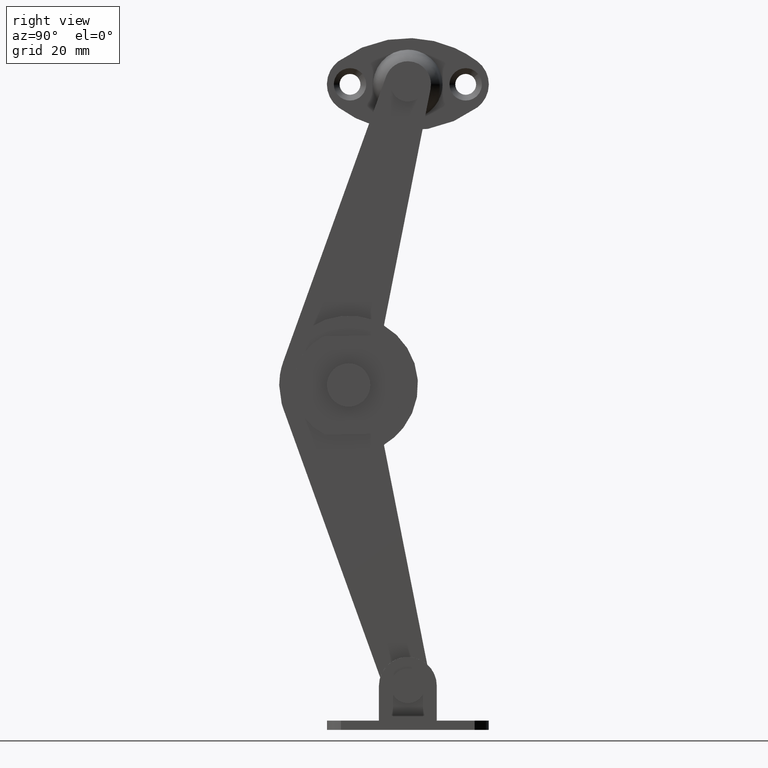
[diagram: clean part render]
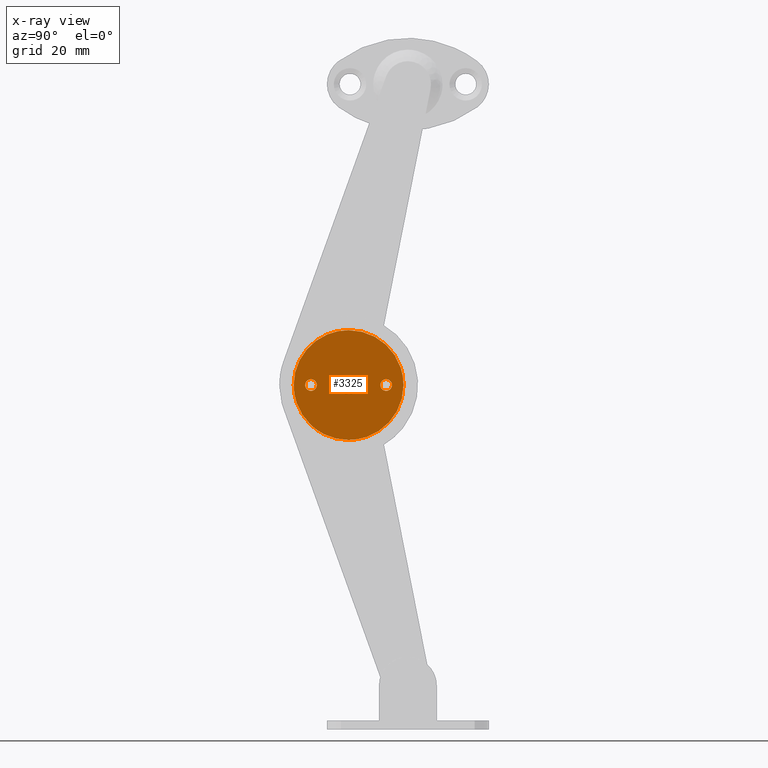
[diagram: x-ray — body ghosted, one internal face saturated and labeled with its STEP entity id]
A machine part, right view, then the same camera in x-ray: the body is ghosted and one INTERNAL B-rep face — a face not visible from any outside direction — is saturated and labeled: STEP entity #3325.
In plain terms, the highlighted face is a freeform B-spline surface patch.
Its self-contained STEP definition (entity closure, byte-faithful):
#2497=CARTESIAN_POINT('',(5.500000000000000,-3.030322445225655,0.697432151794215));
#2498=VERTEX_POINT('',#2497);
#2504=CARTESIAN_POINT('',(5.500000000000000,-3.746973262321150,1.0));
#2505=VERTEX_POINT('',#2504);
#2506=CARTESIAN_POINT('',(5.500000000000000,-3.746973262321150,1.0));
#2507=CARTESIAN_POINT('',(5.500000000000006,-3.622109199368205,1.000103857612727));
#2508=CARTESIAN_POINT('',(5.499999999999981,-3.355877692336740,0.949447917361314));
#2509=CARTESIAN_POINT('',(5.500000000000013,-3.128876140772158,0.798982933153418));
#2510=CARTESIAN_POINT('',(5.500000000000000,-3.030322445225655,0.697432151794215));
#2511=B_SPLINE_CURVE_WITH_KNOTS('',3,(#2506,#2507,#2508,#2509,#2510),.UNSPECIFIED.,.F.,.U.,(4,1,4),(0.000000076756740,0.374556772976184,0.799008979582995),.UNSPECIFIED.);
#2512=EDGE_CURVE('',#2505,#2498,#2511,.T.);
#2514=CARTESIAN_POINT('',(5.500000000000000,-4.746973262321151,2.220446E-016));
#2515=VERTEX_POINT('',#2514);
#2516=CARTESIAN_POINT('',(5.500000000000000,-4.746973262321151,2.220446E-016));
#2517=CARTESIAN_POINT('',(5.499999999999983,-4.747409396205232,0.171922380824970));
#2518=CARTESIAN_POINT('',(5.500000000000024,-4.682128031978997,0.416910630063557));
#2519=CARTESIAN_POINT('',(5.499999999999981,-4.484315041537432,0.690398314859870));
#2520=CARTESIAN_POINT('',(5.500000000000012,-4.313775716574186,0.833909462013589));
#2521=CARTESIAN_POINT('',(5.499999999999989,-4.065947102834080,0.962494687546540));
#2522=CARTESIAN_POINT('',(5.500000000000069,-3.877904973385439,1.000155442239726));
#2523=CARTESIAN_POINT('',(5.500000000000000,-3.746973262321150,1.0));
#2524=B_SPLINE_CURVE_WITH_KNOTS('',3,(#2516,#2517,#2518,#2519,#2520,#2521,#2522,#2523),.UNSPECIFIED.,.F.,.U.,(4,1,1,1,1,4),(0.000000280012394,0.515444720644122,0.736351344608568,1.006309350944693,1.178126924052064,1.570835744389344),.UNSPECIFIED.);
#2525=EDGE_CURVE('',#2515,#2505,#2524,.T.);
#2527=CARTESIAN_POINT('',(5.500000000000000,-3.746973262321150,-1.000000000000000));
#2528=VERTEX_POINT('',#2527);
#2529=CARTESIAN_POINT('',(5.500000000000000,-3.746973262321150,-1.000000000000000));
#2530=CARTESIAN_POINT('',(5.499999999999995,-3.910638233185186,-1.000326984301996));
#2531=CARTESIAN_POINT('',(5.500000000000016,-4.204899616133628,-0.926066770694072));
#2532=CARTESIAN_POINT('',(5.499999999999992,-4.494913788233987,-0.687947884031212));
#2533=CARTESIAN_POINT('',(5.500000000000007,-4.692434213185833,-0.384304910056198));
#2534=CARTESIAN_POINT('',(5.499999999999986,-4.747267979056386,-0.155511716261498));
#2535=CARTESIAN_POINT('',(5.500000000000000,-4.746973262321151,2.220446E-016));
#2536=B_SPLINE_CURVE_WITH_KNOTS('',3,(#2529,#2530,#2531,#2532,#2533,#2534,#2535),.UNSPECIFIED.,.F.,.U.,(4,1,1,1,4),(0.000000280011798,0.490890880689930,0.883567168156846,1.104486430735528,1.570835744389348),.UNSPECIFIED.);
#2537=EDGE_CURVE('',#2528,#2515,#2536,.T.);
#2539=CARTESIAN_POINT('',(5.500000000000000,-3.009696018246675,-0.675590308818834));
#2540=VERTEX_POINT('',#2539);
#2541=CARTESIAN_POINT('',(5.500000000000000,-3.009696018246675,-0.675590308818834));
#2542=CARTESIAN_POINT('',(5.500000000000002,-3.097132552567032,-0.771197565725295));
#2543=CARTESIAN_POINT('',(5.500000000000001,-3.324008704496241,-0.937986325488980));
#2544=CARTESIAN_POINT('',(5.499999999999996,-3.600141037038497,-1.000200448424555));
#2545=CARTESIAN_POINT('',(5.500000000000000,-3.746973262321150,-1.000000000000000));
#2546=B_SPLINE_CURVE_WITH_KNOTS('',3,(#2541,#2542,#2543,#2544,#2545),.UNSPECIFIED.,.F.,.U.,(4,1,4),(0.000000092268307,0.388643068120975,0.829054436019730),.UNSPECIFIED.);
#2547=EDGE_CURVE('',#2540,#2528,#2546,.T.);
#2625=CARTESIAN_POINT('',(5.500000000000000,-2.746973262321150,2.220446E-016));
#2626=VERTEX_POINT('',#2625);
#2627=CARTESIAN_POINT('',(5.500000000000000,-2.746973262321150,2.220446E-016));
#2628=CARTESIAN_POINT('',(5.500000000000004,-2.746819405955617,-0.131371617206485));
#2629=CARTESIAN_POINT('',(5.499999999999995,-2.796462141376235,-0.378490612743781));
#2630=CARTESIAN_POINT('',(5.500000000000004,-2.931319265302183,-0.590183102757916));
#2631=CARTESIAN_POINT('',(5.500000000000000,-3.009696018246675,-0.675590308818834));
#2632=B_SPLINE_CURVE_WITH_KNOTS('',3,(#2627,#2628,#2629,#2630,#2631),.UNSPECIFIED.,.F.,.U.,(4,1,4),(0.000000066372093,0.394049839715587,0.741781672745502),.UNSPECIFIED.);
#2633=EDGE_CURVE('',#2626,#2540,#2632,.T.);
#2635=CARTESIAN_POINT('',(5.500000000000000,-3.030322445225655,0.697432151794215));
#2636=CARTESIAN_POINT('',(5.500000000000006,-2.934872778740838,0.599585710616792));
#2637=CARTESIAN_POINT('',(5.499999999999992,-2.794092481038208,0.377805255910599));
#2638=CARTESIAN_POINT('',(5.500000000000001,-2.746885995060209,0.120612863843128));
#2639=CARTESIAN_POINT('',(5.500000000000000,-2.746973262321150,2.220446E-016));
#2640=B_SPLINE_CURVE_WITH_KNOTS('',3,(#2635,#2636,#2637,#2638,#2639),.UNSPECIFIED.,.F.,.U.,(4,1,4),(0.000000064587784,0.410013834294921,0.771826799784747),.UNSPECIFIED.);
#2641=EDGE_CURVE('',#2498,#2626,#2640,.T.);
#2685=CARTESIAN_POINT('',(5.500000000000000,-16.030322445225650,0.697432151794216));
#2686=VERTEX_POINT('',#2685);
#2692=CARTESIAN_POINT('',(5.500000000000000,-16.746973262321148,1.000000000000001));
#2693=VERTEX_POINT('',#2692);
#2694=CARTESIAN_POINT('',(5.500000000000000,-16.746973262321148,1.000000000000001));
#2695=CARTESIAN_POINT('',(5.500000000000002,-16.647098906385100,1.000031907457498));
#2696=CARTESIAN_POINT('',(5.499999999999996,-16.380761371652302,0.959811257357721));
#2697=CARTESIAN_POINT('',(5.500000000000008,-16.146188058708908,0.817075766097498));
#2698=CARTESIAN_POINT('',(5.500000000000000,-16.030322445225650,0.697432151794216));
#2699=B_SPLINE_CURVE_WITH_KNOTS('',3,(#2694,#2695,#2696,#2697,#2698),.UNSPECIFIED.,.F.,.U.,(4,1,4),(0.000000076756404,0.299637158526704,0.799008979582993),.UNSPECIFIED.);
#2700=EDGE_CURVE('',#2693,#2686,#2699,.T.);
#2702=CARTESIAN_POINT('',(5.500000000000000,-17.746973262321148,9.992007E-016));
#2703=VERTEX_POINT('',#2702);
#2704=CARTESIAN_POINT('',(5.500000000000000,-17.746973262321148,9.992007E-016));
#2705=CARTESIAN_POINT('',(5.500000000000004,-17.747212325566942,0.147310472085326));
#2706=CARTESIAN_POINT('',(5.500000000000001,-17.691713684261931,0.392528141332751));
#2707=CARTESIAN_POINT('',(5.500000000000004,-17.503309764437041,0.674476275615974));
#2708=CARTESIAN_POINT('',(5.499999999999995,-17.313768964984849,0.833903910440057));
#2709=CARTESIAN_POINT('',(5.500000000000012,-17.065949548639878,0.962496321013273));
#2710=CARTESIAN_POINT('',(5.500000000000020,-16.877904470278231,1.000155025172209));
#2711=CARTESIAN_POINT('',(5.500000000000000,-16.746973262321148,1.000000000000001));
#2712=B_SPLINE_CURVE_WITH_KNOTS('',3,(#2704,#2705,#2706,#2707,#2708,#2709,#2710,#2711),.UNSPECIFIED.,.F.,.U.,(4,1,1,1,1,4),(0.000000280011482,0.441800343304026,0.736351344608462,1.006309350944691,1.178126924052070,1.570835744389341),.UNSPECIFIED.);
#2713=EDGE_CURVE('',#2703,#2693,#2712,.T.);
#2715=CARTESIAN_POINT('',(5.500000000000000,-16.746973262321148,-0.999999999999999));
#2716=VERTEX_POINT('',#2715);
#2717=CARTESIAN_POINT('',(5.500000000000000,-16.746973262321148,-0.999999999999999));
#2718=CARTESIAN_POINT('',(5.500000000000015,-16.918894418047682,-1.000434695821290));
#2719=CARTESIAN_POINT('',(5.499999999999974,-17.163885127483329,-0.935157139050198));
#2720=CARTESIAN_POINT('',(5.500000000000028,-17.437370380212471,-0.737340553851565));
#2721=CARTESIAN_POINT('',(5.499999999999989,-17.580883709697179,-0.566802698204639));
#2722=CARTESIAN_POINT('',(5.500000000000004,-17.709466966698830,-0.318974133347528));
#2723=CARTESIAN_POINT('',(5.500000000000004,-17.747129408707821,-0.130931099227359));
#2724=CARTESIAN_POINT('',(5.500000000000000,-17.746973262321148,9.992007E-016));
#2725=B_SPLINE_CURVE_WITH_KNOTS('',3,(#2717,#2718,#2719,#2720,#2721,#2722,#2723,#2724),.UNSPECIFIED.,.F.,.U.,(4,1,1,1,1,4),(0.000000280011233,0.515444720643007,0.736351344607577,1.006309350944015,1.178126924051604,1.570835744389359),.UNSPECIFIED.);
#2726=EDGE_CURVE('',#2716,#2703,#2725,.T.);
#2728=CARTESIAN_POINT('',(5.500000000000000,-16.009696018246672,-0.675590308818833));
#2729=VERTEX_POINT('',#2728);
#2730=CARTESIAN_POINT('',(5.500000000000000,-16.009696018246672,-0.675590308818833));
#2731=CARTESIAN_POINT('',(5.499999999999995,-16.091312435588900,-0.764793452277554));
#2732=CARTESIAN_POINT('',(5.500000000000004,-16.315440851547809,-0.934183770697505));
#2733=CARTESIAN_POINT('',(5.500000000000003,-16.591478719550420,-1.000261968141412));
#2734=CARTESIAN_POINT('',(5.500000000000000,-16.746973262321148,-0.999999999999999));
#2735=B_SPLINE_CURVE_WITH_KNOTS('',3,(#2730,#2731,#2732,#2733,#2734),.UNSPECIFIED.,.F.,.U.,(4,1,4),(0.000000092268600,0.362720045184961,0.829054436019731),.UNSPECIFIED.);
#2736=EDGE_CURVE('',#2729,#2716,#2735,.T.);
#2814=CARTESIAN_POINT('',(5.500000000000000,-15.746973262321150,9.992007E-016));
#2815=VERTEX_POINT('',#2814);
#2816=CARTESIAN_POINT('',(5.500000000000000,-15.746973262321150,9.992007E-016));
#2817=CARTESIAN_POINT('',(5.500000000000006,-15.746826606521649,-0.131367279808294));
#2818=CARTESIAN_POINT('',(5.499999999999990,-15.796443653290959,-0.378501798501696));
#2819=CARTESIAN_POINT('',(5.499999999999999,-15.931330497602451,-0.590176128142429));
#2820=CARTESIAN_POINT('',(5.500000000000000,-16.009696018246672,-0.675590308818833));
#2821=B_SPLINE_CURVE_WITH_KNOTS('',3,(#2816,#2817,#2818,#2819,#2820),.UNSPECIFIED.,.F.,.U.,(4,1,4),(0.000000066372231,0.394049839715643,0.741781672745498),.UNSPECIFIED.);
#2822=EDGE_CURVE('',#2815,#2729,#2821,.T.);
#2824=CARTESIAN_POINT('',(5.500000000000000,-16.030322445225650,0.697432151794216));
#2825=CARTESIAN_POINT('',(5.499999999999999,-15.934865600480951,0.599590387497058));
#2826=CARTESIAN_POINT('',(5.500000000000004,-15.794102266956990,0.377800454628115));
#2827=CARTESIAN_POINT('',(5.500000000000001,-15.746882784166351,0.120614244443548));
#2828=CARTESIAN_POINT('',(5.500000000000000,-15.746973262321150,9.992007E-016));
#2829=B_SPLINE_CURVE_WITH_KNOTS('',3,(#2824,#2825,#2826,#2827,#2828),.UNSPECIFIED.,.F.,.U.,(4,1,4),(0.000000064587637,0.410013834294852,0.771826799784751),.UNSPECIFIED.);
#2830=EDGE_CURVE('',#2686,#2815,#2829,.T.);
#2874=CARTESIAN_POINT('',(5.500000000000000,-9.171997228686198,1.046147336653628));
#2875=VERTEX_POINT('',#2874);
#2881=CARTESIAN_POINT('',(5.500000000000000,-10.246973262321140,1.500000000000002));
#2882=VERTEX_POINT('',#2881);
#2883=CARTESIAN_POINT('',(5.500000000000000,-10.246973262321140,1.500000000000002));
#2884=CARTESIAN_POINT('',(5.499999999999995,-10.009674634493420,1.500450292210523));
#2885=CARTESIAN_POINT('',(5.500000000000018,-9.610678126642636,1.403138945325387));
#2886=CARTESIAN_POINT('',(5.499999999999986,-9.285137989693158,1.162498884729421));
#2887=CARTESIAN_POINT('',(5.500000000000000,-9.171997228686198,1.046147336653628));
#2888=B_SPLINE_CURVE_WITH_KNOTS('',3,(#2883,#2884,#2885,#2886,#2887),.UNSPECIFIED.,.F.,.U.,(4,1,4),(0.000000071664438,0.711613820294272,1.198513670814960),.UNSPECIFIED.);
#2889=EDGE_CURVE('',#2882,#2875,#2888,.T.);
#2891=CARTESIAN_POINT('',(5.499999999999999,-11.746973262318059,0.000003037284961));
#2892=VERTEX_POINT('',#2891);
#2893=CARTESIAN_POINT('',(5.499999999999999,-11.746973262318059,0.000003037284961));
#2894=CARTESIAN_POINT('',(5.499999999999989,-11.747303861785310,0.220948334817128));
#2895=CARTESIAN_POINT('',(5.500000000000023,-11.661363718258730,0.601109340619256));
#2896=CARTESIAN_POINT('',(5.499999999999975,-11.373001537623100,1.021252815548210));
#2897=CARTESIAN_POINT('',(5.500000000000057,-11.048005111395421,1.287935636152848));
#2898=CARTESIAN_POINT('',(5.499999999999852,-10.676456023671520,1.458108413450636));
#2899=CARTESIAN_POINT('',(5.500000000000158,-10.394240535595790,1.500053692440572));
#2900=CARTESIAN_POINT('',(5.500000000000000,-10.246973262321140,1.500000000000002));
#2901=B_SPLINE_CURVE_WITH_KNOTS('',3,(#2893,#2894,#2895,#2896,#2897,#2898,#2899,#2900),.UNSPECIFIED.,.F.,.U.,(4,1,1,1,1,4),(0.000000288016019,0.662699800321878,1.141351506788639,1.509469417795485,1.914459849586190,2.356251904649897),.UNSPECIFIED.);
#2902=EDGE_CURVE('',#2892,#2882,#2901,.T.);
#2904=CARTESIAN_POINT('',(5.500000000000000,-10.246973262321140,-1.499999999999998));
#2905=VERTEX_POINT('',#2904);
#2906=CARTESIAN_POINT('',(5.500000000000000,-10.246973262321140,-1.499999999999998));
#2907=CARTESIAN_POINT('',(5.500000000000003,-10.467934543212481,-1.500347901674440));
#2908=CARTESIAN_POINT('',(5.499999999999996,-10.823503389180001,-1.419895687693361));
#2909=CARTESIAN_POINT('',(5.500000000000013,-11.207544767958961,-1.169941966007040));
#2910=CARTESIAN_POINT('',(5.499999999999968,-11.445593317517870,-0.919869699579572));
#2911=CARTESIAN_POINT('',(5.500000000000078,-11.672448082187641,-0.552004709833400));
#2912=CARTESIAN_POINT('',(5.499999999999917,-11.747281673951210,-0.220956619499783));
#2913=CARTESIAN_POINT('',(5.499999999999999,-11.746973262318059,0.000003037284961));
#2914=B_SPLINE_CURVE_WITH_KNOTS('',3,(#2906,#2907,#2908,#2909,#2910,#2911,#2912,#2913),.UNSPECIFIED.,.F.,.U.,(4,1,1,1,1,4),(0.000000283865044,0.662700760031224,1.067679616822650,1.362179204002087,1.693554854032483,2.356255328463375),.UNSPECIFIED.);
#2915=EDGE_CURVE('',#2905,#2892,#2914,.T.);
#2917=CARTESIAN_POINT('',(5.500000000000000,-9.141056553745147,-1.013385663499660));
#2918=VERTEX_POINT('',#2917);
#2919=CARTESIAN_POINT('',(5.500000000000000,-9.141056553745147,-1.013385663499660));
#2920=CARTESIAN_POINT('',(5.499999999999994,-9.272208613969928,-1.156795595304713));
#2921=CARTESIAN_POINT('',(5.500000000000025,-9.612532733660636,-1.406938344908132));
#2922=CARTESIAN_POINT('',(5.499999999999985,-10.026711180810560,-1.500333291413499));
#2923=CARTESIAN_POINT('',(5.500000000000000,-10.246973262321140,-1.499999999999998));
#2924=B_SPLINE_CURVE_WITH_KNOTS('',3,(#2919,#2920,#2921,#2922,#2923),.UNSPECIFIED.,.F.,.U.,(4,1,4),(0.000000086123823,0.582950317205485,1.243582389119931),.UNSPECIFIED.);
#2925=EDGE_CURVE('',#2918,#2905,#2924,.T.);
#3005=CARTESIAN_POINT('',(5.500000000000000,-8.746973262324215,-0.000003037284955));
#3006=VERTEX_POINT('',#3005);
#3007=CARTESIAN_POINT('',(5.500000000000000,-8.746973262324215,-0.000003037284955));
#3008=CARTESIAN_POINT('',(5.499999999999995,-8.746770717077531,-0.197057646333228));
#3009=CARTESIAN_POINT('',(5.500000000000012,-8.821182273043688,-0.567749084333357));
#3010=CARTESIAN_POINT('',(5.499999999999997,-9.023498895152059,-0.885277717965652));
#3011=CARTESIAN_POINT('',(5.500000000000000,-9.141056553745147,-1.013385663499660));
#3012=B_SPLINE_CURVE_WITH_KNOTS('',3,(#3007,#3008,#3009,#3010,#3011),.UNSPECIFIED.,.F.,.U.,(4,1,4),(0.000000063143345,0.591085767472389,1.112669330625376),.UNSPECIFIED.);
#3013=EDGE_CURVE('',#3006,#2918,#3012,.T.);
#3015=CARTESIAN_POINT('',(5.500000000000000,-9.171997228686198,1.046147336653628));
#3016=CARTESIAN_POINT('',(5.500000000000000,-9.062619566747538,0.933835940914525));
#3017=CARTESIAN_POINT('',(5.500000000000001,-8.837226558034510,0.614697761554244));
#3018=CARTESIAN_POINT('',(5.500000000000005,-8.746580273450196,0.229211045640326));
#3019=CARTESIAN_POINT('',(5.500000000000000,-8.746973262324215,-0.000003037284955));
#3020=B_SPLINE_CURVE_WITH_KNOTS('',3,(#3015,#3016,#3017,#3018,#3019),.UNSPECIFIED.,.F.,.U.,(4,1,4),(0.000000060385510,0.470336214402706,1.157742439564171),.UNSPECIFIED.);
#3021=EDGE_CURVE('',#2875,#3006,#3020,.T.);
#3068=CARTESIAN_POINT('',(5.500000000000000,-17.500752298372351,6.134549795108822));
#3069=VERTEX_POINT('',#3068);
#3075=CARTESIAN_POINT('',(5.500000000000000,-10.246973262321140,9.500000000000002));
#3076=VERTEX_POINT('',#3075);
#3077=CARTESIAN_POINT('',(5.500000000000000,-17.500752298372351,6.134549795108822));
#3078=CARTESIAN_POINT('',(5.500000000000012,-17.139927453079849,6.561291157257775));
#3079=CARTESIAN_POINT('',(5.499999999999980,-16.373295759213899,7.320404495294614));
#3080=CARTESIAN_POINT('',(5.500000000000036,-14.924820183950390,8.334807534185377));
#3081=CARTESIAN_POINT('',(5.499999999999933,-13.425007859889160,9.006051369582625));
#3082=CARTESIAN_POINT('',(5.500000000000150,-11.794508535021880,9.412485213361302));
#3083=CARTESIAN_POINT('',(5.499999999999826,-10.805812348912889,9.500053095004450));
#3084=CARTESIAN_POINT('',(5.500000000000000,-10.246973262321140,9.500000000000002));
#3085=B_SPLINE_CURVE_WITH_KNOTS('',3,(#3077,#3078,#3079,#3080,#3081,#3082,#3083,#3084),.UNSPECIFIED.,.F.,.U.,(4,1,1,1,1,4),(0.000000022840437,1.676524671957664,3.224108392116794,5.287505924716227,6.577154347931614,8.253678997036237),.UNSPECIFIED.);
#3086=EDGE_CURVE('',#3069,#3076,#3085,.T.);
#3088=CARTESIAN_POINT('',(5.500000000000000,-0.746973262321457,-0.000002453534260));
#3089=VERTEX_POINT('',#3088);
#3090=CARTESIAN_POINT('',(5.500000000000000,-10.246973262321140,9.500000000000002));
#3091=CARTESIAN_POINT('',(5.500000000000007,-9.702928710952296,9.500046704333698));
#3092=CARTESIAN_POINT('',(5.499999999999985,-8.653709761558432,9.409604965221311));
#3093=CARTESIAN_POINT('',(5.499999999999996,-6.954558349431488,8.973047228504626));
#3094=CARTESIAN_POINT('',(5.500000000000044,-5.434775180880195,8.254182757834730));
#3095=CARTESIAN_POINT('',(5.499999999999933,-4.045285741054946,7.249740505297178));
#3096=CARTESIAN_POINT('',(5.500000000000092,-2.748794187396849,5.953632145577898));
#3097=CARTESIAN_POINT('',(5.499999999999889,-1.627013648073060,4.205913842775665));
#3098=CARTESIAN_POINT('',(5.500000000000029,-0.902146692769026,2.098447342562109));
#3099=CARTESIAN_POINT('',(5.500000000000001,-0.746869151204400,0.699497855325380));
#3100=CARTESIAN_POINT('',(5.500000000000000,-0.746973262321457,-0.000002453534260));
#3101=B_SPLINE_CURVE_WITH_KNOTS('',3,(#3090,#3091,#3092,#3093,#3094,#3095,#3096,#3097,#3098,#3099,#3100),.UNSPECIFIED.,.F.,.U.,(4,1,1,1,1,1,1,1,4),(0.000000086382677,1.632137744125176,3.147742378597597,5.246255027872270,6.645258447506130,8.277398645518439,10.725657489563289,12.824163717468050,14.922660120176630),.UNSPECIFIED.);
#3102=EDGE_CURVE('',#3076,#3089,#3101,.T.);
#3104=CARTESIAN_POINT('',(5.500000000000000,-10.246973262321140,-9.499999999999998));
#3105=VERTEX_POINT('',#3104);
#3106=CARTESIAN_POINT('',(5.500000000000000,-0.746973262321457,-0.000002453534260));
#3107=CARTESIAN_POINT('',(5.500000000000000,-0.746834921499494,-0.738360515548413));
#3108=CARTESIAN_POINT('',(5.500000000000013,-0.901782871531700,-2.059571912372488));
#3109=CARTESIAN_POINT('',(5.499999999999989,-1.438000325335400,-3.649702022489380));
#3110=CARTESIAN_POINT('',(5.500000000000008,-2.146475599591454,-5.035997600900579));
#3111=CARTESIAN_POINT('',(5.500000000000029,-2.992818695433264,-6.206916607469582));
#3112=CARTESIAN_POINT('',(5.499999999999962,-4.192082806020314,-7.377070959576727));
#3113=CARTESIAN_POINT('',(5.500000000000142,-5.569939573625768,-8.334945796212212));
#3114=CARTESIAN_POINT('',(5.499999999999940,-7.140695438728487,-9.031192976120368));
#3115=CARTESIAN_POINT('',(5.500000000000021,-8.731416011532755,-9.419215860245362));
#3116=CARTESIAN_POINT('',(5.499999999999997,-9.741784775765471,-9.500034141233446));
#3117=CARTESIAN_POINT('',(5.500000000000000,-10.246973262321140,-9.499999999999998));
#3118=B_SPLINE_CURVE_WITH_KNOTS('',3,(#3106,#3107,#3108,#3109,#3110,#3111,#3112,#3113,#3114,#3115,#3116,#3117),.UNSPECIFIED.,.F.,.U.,(4,1,1,1,1,1,1,1,1,4),(0.000000087236740,2.215064404412949,3.963831773127895,5.013098279921698,6.878443196778285,8.277397114037438,10.026146310325190,11.891502364558120,13.407086714008910,14.922657354454349),.UNSPECIFIED.);
#3119=EDGE_CURVE('',#3089,#3105,#3118,.T.);
#3121=CARTESIAN_POINT('',(5.500000000000000,-16.786341312685138,-6.891056077522617));
#3122=VERTEX_POINT('',#3121);
#3123=CARTESIAN_POINT('',(5.500000000000000,-10.246973262321140,-9.499999999999998));
#3124=CARTESIAN_POINT('',(5.500000000000000,-10.810458600840709,-9.500055026737002));
#3125=CARTESIAN_POINT('',(5.500000000000003,-11.824707513155539,-9.409481851593258));
#3126=CARTESIAN_POINT('',(5.500000000000012,-13.394141376062770,-9.010247708634330));
#3127=CARTESIAN_POINT('',(5.499999999999965,-15.086083441007020,-8.264475825516120));
#3128=CARTESIAN_POINT('',(5.500000000000044,-16.214236642472208,-7.434235143082602));
#3129=CARTESIAN_POINT('',(5.500000000000000,-16.786341312685138,-6.891056077522617));
#3130=B_SPLINE_CURVE_WITH_KNOTS('',3,(#3123,#3124,#3125,#3126,#3127,#3128,#3129),.UNSPECIFIED.,.F.,.U.,(4,1,1,1,4),(0.000000023311619,1.690456005733548,3.042826608653630,4.845974232623252,7.212615194536141),.UNSPECIFIED.);
#3131=EDGE_CURVE('',#3105,#3122,#3130,.T.);
#3224=CARTESIAN_POINT('',(5.500000000000000,-19.746973262320822,0.000002453534454));
#3225=VERTEX_POINT('',#3224);
#3226=CARTESIAN_POINT('',(5.500000000000000,-16.786341312685138,-6.891056077522617));
#3227=CARTESIAN_POINT('',(5.500000000000008,-17.281609028221840,-6.421221262319333));
#3228=CARTESIAN_POINT('',(5.499999999999991,-17.987147653534208,-5.589693667169018));
#3229=CARTESIAN_POINT('',(5.499999999999995,-18.783952900386989,-4.237786789984678));
#3230=CARTESIAN_POINT('',(5.500000000000050,-19.277614188329139,-3.047368982632054));
#3231=CARTESIAN_POINT('',(5.499999999999937,-19.651154321512600,-1.606221197761196));
#3232=CARTESIAN_POINT('',(5.500000000000024,-19.747044365818049,-0.602346788659641));
#3233=CARTESIAN_POINT('',(5.500000000000000,-19.746973262320822,0.000002453534454));
#3234=B_SPLINE_CURVE_WITH_KNOTS('',3,(#3226,#3227,#3228,#3229,#3230,#3231,#3232,#3233),.UNSPECIFIED.,.F.,.U.,(4,1,1,1,1,4),(0.000000026708189,2.047982683175206,3.252688847736573,4.698304677881172,5.903005583434155,7.710045827225886),.UNSPECIFIED.);
#3235=EDGE_CURVE('',#3122,#3225,#3234,.T.);
#3237=CARTESIAN_POINT('',(5.500000000000000,-19.746973262320822,0.000002453534454));
#3238=CARTESIAN_POINT('',(5.500000000000005,-19.747084393498259,0.694690401906657));
#3239=CARTESIAN_POINT('',(5.499999999999991,-19.609181426102609,1.945060638131806));
#3240=CARTESIAN_POINT('',(5.500000000000010,-18.934659232628480,4.072274174292389));
#3241=CARTESIAN_POINT('',(5.499999999999979,-18.129180956785671,5.392207270753062));
#3242=CARTESIAN_POINT('',(5.500000000000000,-17.500752298372351,6.134549795108822));
#3243=B_SPLINE_CURVE_WITH_KNOTS('',3,(#3237,#3238,#3239,#3240,#3241,#3242),.UNSPECIFIED.,.F.,.U.,(4,1,1,4),(0.000000022057619,2.084056716243791,3.751301112369498,6.668980928886766),.UNSPECIFIED.);
#3244=EDGE_CURVE('',#3225,#3069,#3243,.T.);
#3288=CARTESIAN_POINT('',(5.500000000000090,0.202076700852826,-10.449049963174311));
#3289=CARTESIAN_POINT('',(5.500000000000090,-20.696023735114810,-10.449049963174311));
#3290=CARTESIAN_POINT('',(5.500000000000090,0.202076700852826,10.449050472794029));
#3291=CARTESIAN_POINT('',(5.500000000000090,-20.696023735114810,10.449050472794029));
#3292=B_SPLINE_SURFACE_WITH_KNOTS('',1,1,((#3288,#3290),(#3289,#3291)),.UNSPECIFIED.,.F.,.F.,.U.,(2,2),(2,2),(0.0,20.898100435967638),(0.0,20.898100435968342),.UNSPECIFIED.);
#3293=ORIENTED_EDGE('',*,*,#3086,.F.);
#3294=ORIENTED_EDGE('',*,*,#3244,.F.);
#3295=ORIENTED_EDGE('',*,*,#3235,.F.);
#3296=ORIENTED_EDGE('',*,*,#3131,.F.);
#3297=ORIENTED_EDGE('',*,*,#3119,.F.);
#3298=ORIENTED_EDGE('',*,*,#3102,.F.);
#3299=EDGE_LOOP('',(#3293,#3294,#3295,#3296,#3297,#3298));
#3300=FACE_OUTER_BOUND('',#3299,.T.);
#3301=ORIENTED_EDGE('',*,*,#2726,.T.);
#3302=ORIENTED_EDGE('',*,*,#2713,.T.);
#3303=ORIENTED_EDGE('',*,*,#2700,.T.);
#3304=ORIENTED_EDGE('',*,*,#2830,.T.);
#3305=ORIENTED_EDGE('',*,*,#2822,.T.);
#3306=ORIENTED_EDGE('',*,*,#2736,.T.);
#3307=EDGE_LOOP('',(#3301,#3302,#3303,#3304,#3305,#3306));
#3308=FACE_BOUND('',#3307,.T.);
#3309=ORIENTED_EDGE('',*,*,#2915,.T.);
#3310=ORIENTED_EDGE('',*,*,#2902,.T.);
#3311=ORIENTED_EDGE('',*,*,#2889,.T.);
#3312=ORIENTED_EDGE('',*,*,#3021,.T.);
#3313=ORIENTED_EDGE('',*,*,#3013,.T.);
#3314=ORIENTED_EDGE('',*,*,#2925,.T.);
#3315=EDGE_LOOP('',(#3309,#3310,#3311,#3312,#3313,#3314));
#3316=FACE_BOUND('',#3315,.T.);
#3317=ORIENTED_EDGE('',*,*,#2537,.T.);
#3318=ORIENTED_EDGE('',*,*,#2525,.T.);
#3319=ORIENTED_EDGE('',*,*,#2512,.T.);
#3320=ORIENTED_EDGE('',*,*,#2641,.T.);
#3321=ORIENTED_EDGE('',*,*,#2633,.T.);
#3322=ORIENTED_EDGE('',*,*,#2547,.T.);
#3323=EDGE_LOOP('',(#3317,#3318,#3319,#3320,#3321,#3322));
#3324=FACE_BOUND('',#3323,.T.);
#3325=ADVANCED_FACE('',(#3300,#3308,#3316,#3324),#3292,.F.);